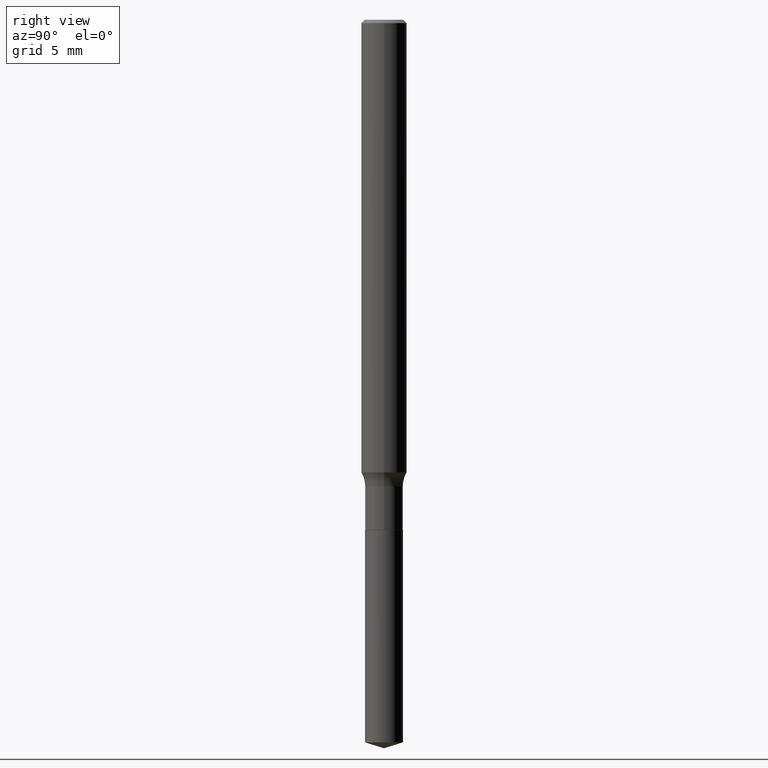
[diagram: clean part render]
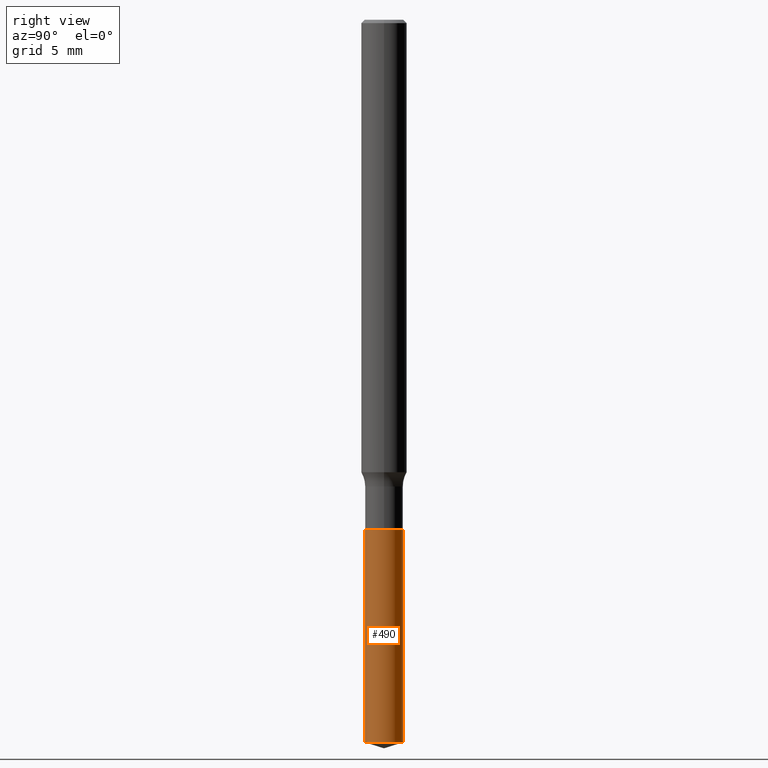
[diagram: same view with one face highlighted and labeled with its STEP entity id]
A machine part, right view. The second image highlights one B-rep face of the part: STEP entity #490.
In plain terms, the highlighted cylindrical surface (edge-blend (fillet) strip) has radius 1.3208 mm, axis along (-0, 0, 1).
Its self-contained STEP definition (entity closure, byte-faithful):
#12 = VERTEX_POINT ( 'NONE', #429 ) ;
#49 = EDGE_LOOP ( 'NONE', ( #55, #139, #275, #427 ) ) ;
#55 = ORIENTED_EDGE ( 'NONE', *, *, #389, .T. ) ;
#75 = CYLINDRICAL_SURFACE ( 'NONE', #234, 0.05199999999999999067 ) ;
#103 = LINE ( 'NONE', #335, #294 ) ;
#108 = DIRECTION ( 'NONE',  ( -2.445120969459093644E-29, 3.491979460832475934E-15, 1.000000000000000000 ) ) ;
#115 = AXIS2_PLACEMENT_3D ( 'NONE', #456, #269, #116 ) ;
#116 = DIRECTION ( 'NONE',  ( -6.982962677686266711E-15, -1.000000000000000000, 5.253553833969737838E-15 ) ) ;
#139 = ORIENTED_EDGE ( 'NONE', *, *, #151, .T. ) ;
#140 = DIRECTION ( 'NONE',  ( -2.445120969459093644E-29, 3.491979460832475934E-15, 1.000000000000000000 ) ) ;
#151 = EDGE_CURVE ( 'NONE', #246, #12, #220, .T. ) ;
#161 = AXIS2_PLACEMENT_3D ( 'NONE', #451, #108, #263 ) ;
#165 = EDGE_CURVE ( 'NONE', #309, #466, #103, .T. ) ;
#192 = FACE_OUTER_BOUND ( 'NONE', #49, .T. ) ;
#193 = CARTESIAN_POINT ( 'NONE',  ( 3.694822225952862472E-16, 0.05199999999999509875, -1.400900000000000256 ) ) ;
#196 = DIRECTION ( 'NONE',  ( -2.445120969459093644E-29, 3.491979460832475934E-15, 1.000000000000000000 ) ) ;
#201 = VECTOR ( 'NONE', #368, 39.37007874015748143 ) ;
#220 = LINE ( 'NONE', #193, #201 ) ;
#232 = CARTESIAN_POINT ( 'NONE',  ( 3.425857250584757942E-29, -4.891216207585362759E-15, -1.400900000000000034 ) ) ;
#234 = AXIS2_PLACEMENT_3D ( 'NONE', #232, #196, #381 ) ;
#246 = VERTEX_POINT ( 'NONE', #295 ) ;
#263 = DIRECTION ( 'NONE',  ( -6.982962677686266711E-15, -1.000000000000000000, 5.253553833969737838E-15 ) ) ;
#269 = DIRECTION ( 'NONE',  ( -2.445120969459093644E-29, 3.491979460832475934E-15, 1.000000000000000000 ) ) ;
#272 = CIRCLE ( 'NONE', #161, 0.05199999999999999067 ) ;
#275 = ORIENTED_EDGE ( 'NONE', *, *, #357, .F. ) ;
#294 = VECTOR ( 'NONE', #140, 39.37007874015748143 ) ;
#295 = CARTESIAN_POINT ( 'NONE',  ( 3.694822225953003974E-16, 0.05199999999999304484, -1.983604462978292959 ) ) ;
#309 = VERTEX_POINT ( 'NONE', #331 ) ;
#331 = CARTESIAN_POINT ( 'NONE',  ( -3.631140592396370957E-16, -0.05200000000000690181, -1.983604462978292515 ) ) ;
#335 = CARTESIAN_POINT ( 'NONE',  ( -3.631140592396514924E-16, -0.05200000000000488259, -1.400899999999999812 ) ) ;
#357 = EDGE_CURVE ( 'NONE', #466, #12, #272, .T. ) ;
#368 = DIRECTION ( 'NONE',  ( -2.445120969459093644E-29, 3.491979460832475934E-15, 1.000000000000000000 ) ) ;
#377 = CIRCLE ( 'NONE', #115, 0.05199999999999999067 ) ;
#381 = DIRECTION ( 'NONE',  ( -6.982962677686266711E-15, -1.000000000000000000, 5.253553833969737838E-15 ) ) ;
#389 = EDGE_CURVE ( 'NONE', #309, #246, #377, .T. ) ;
#416 = CARTESIAN_POINT ( 'NONE',  ( -3.631140592396514924E-16, -0.05200000000000488259, -1.400899999999999812 ) ) ;
#427 = ORIENTED_EDGE ( 'NONE', *, *, #165, .F. ) ;
#429 = CARTESIAN_POINT ( 'NONE',  ( 3.694822225953005946E-16, 0.05199999999999509875, -1.400900000000000256 ) ) ;
#451 = CARTESIAN_POINT ( 'NONE',  ( 3.425857250584757942E-29, -4.891216207585362759E-15, -1.400900000000000034 ) ) ;
#456 = CARTESIAN_POINT ( 'NONE',  ( 4.850640152010381850E-29, -6.926008224040978869E-15, -1.983604462978292737 ) ) ;
#466 = VERTEX_POINT ( 'NONE', #416 ) ;
#490 = ADVANCED_FACE ( 'NONE', ( #192 ), #75, .T. ) ;